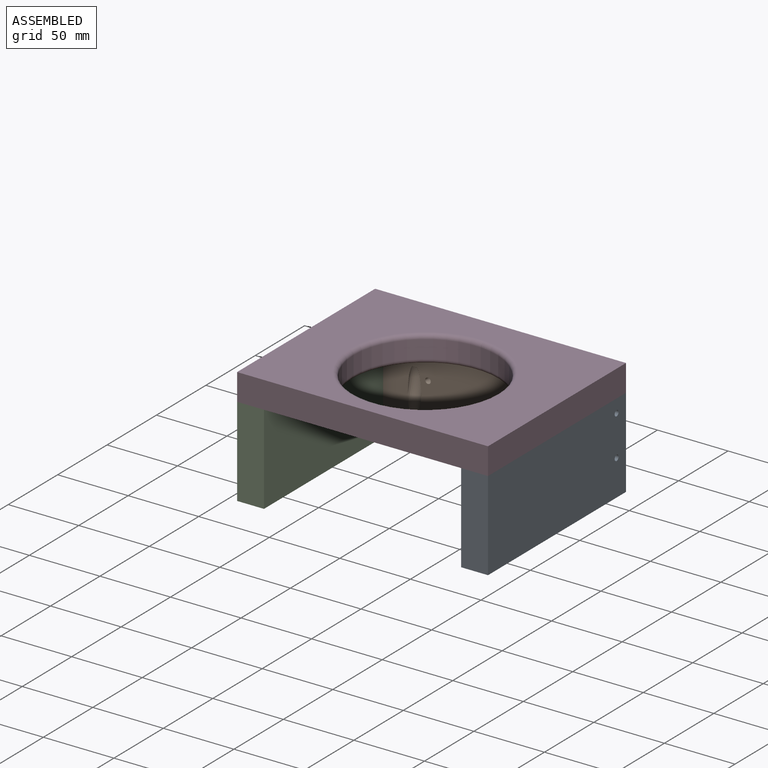
[diagram: assembled view]
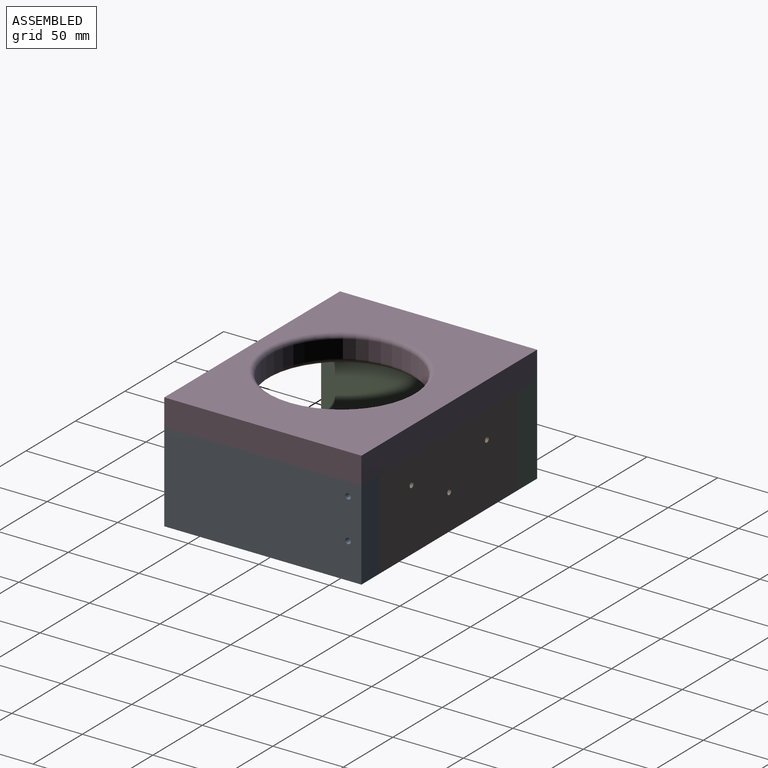
[diagram: assembled view, second angle]
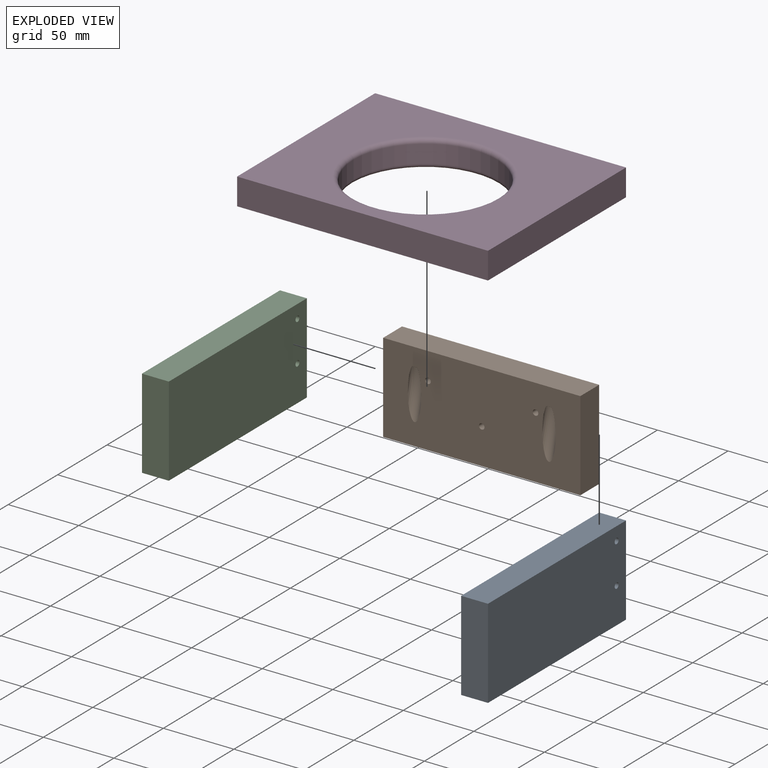
[diagram: exploded view]
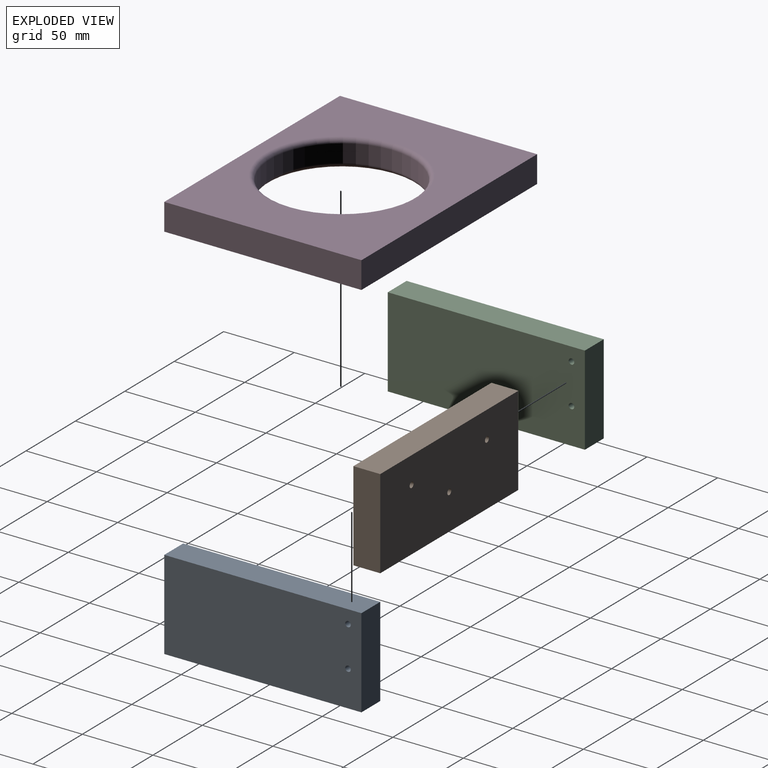
[diagram: exploded view, second angle]
ASSEMBLY  parts=4 mates=3
PART A: 8 faces, bbox 19.1x139.7x63.5 mm
  f0: plane 139.7x63.5mm, normal (1,0,0), area 8846.2mm2, adj f1,f3,f4,f5,f6,f7
  f1: plane 63.5x19.05mm, normal (0,-1,0), area 1209.7mm2, adj f0,f2,f4,f5
  f2: plane 139.7x63.5mm, normal (-1,0,0), area 8846.2mm2, adj f1,f3,f4,f5,f6,f7
  f3: plane 63.5x19.05mm, normal (0,1,0), area 1209.7mm2, adj f0,f2,f4,f5
  f4: plane 139.7x19.05mm, normal (0,0,-1), area 2661.3mm2, adj f0,f1,f2,f3
  f5: plane 139.7x19.05mm, normal (0,0,1), area 2661.3mm2, adj f0,f1,f2,f3
  f6: cylinder r=1.98mm len=19.05mm, axis (-1,0,0), area 237.5mm2, adj f0,f2
  f7: cylinder r=1.98mm len=19.05mm, axis (-1,0,0), area 237.5mm2, adj f0,f2
PART B: 17 faces, bbox 139.7x27.9x63.5 mm
  f0: plane 139.7x63.5mm, normal (0,-1,0), area 8290.7mm2, adj f1,f3,f4,f5,f6,f7,f8,f9
  f1: plane 139.7x19.05mm, normal (0,0,-1), area 2661.3mm2, adj f0,f2,f4,f5
  f2: plane 139.7x63.5mm, normal (0,1,0), area 8833.8mm2, adj f1,f3,f4,f5,f6,f7,f8
  f3: plane 139.7x19.05mm, normal (0,0,1), area 2661.3mm2, adj f0,f2,f4,f5
  f4: plane 63.5x19.05mm, normal (1,0,0), area 1209.7mm2, adj f0,f1,f2,f3
  f5: plane 63.5x19.05mm, normal (-1,0,0), area 1209.7mm2, adj f0,f1,f2,f3
  f6: cylinder r=1.98mm len=19.05mm, axis (0,-1,0), area 237.5mm2, adj f0,f2
  f7: cylinder r=1.98mm len=19.05mm, axis (0,-1,0), area 237.5mm2, adj f0,f2
  f8: cylinder r=1.98mm len=19.05mm, axis (0,-1,0), area 237.5mm2, adj f0,f2
  f9: cylinder r=4.76mm len=35.5mm, axis (0,0.26,0.97), area 492.7mm2, adj f0,f10
  f10: plane 9.53x8.83mm, normal (0,-0.26,-0.97), area 57.9mm2, adj f0,f9,f12
  f11: plane 3.97x3.83mm, normal (0,-0.26,-0.97), area 12.4mm2, adj f12
  f12: cylinder r=1.98mm len=13.29mm, axis (0,0.26,0.97), area 158.3mm2, adj f10,f11
  f13: cylinder r=4.76mm len=35.5mm, axis (0,0.26,0.97), area 492.7mm2, adj f0,f14
  f14: plane 9.53x8.83mm, normal (0,-0.26,-0.97), area 57.9mm2, adj f0,f13,f16
  f15: plane 3.97x3.83mm, normal (0,-0.26,-0.97), area 12.4mm2, adj f16
  f16: cylinder r=1.98mm len=13.29mm, axis (0,0.26,0.97), area 158.3mm2, adj f14,f15
PART C: same geometry as A
PART D: 9 faces, bbox 177.8x139.7x19.1 mm
  f0: plane 177.8x19.05mm, normal (0,1,0), area 3387.1mm2, adj f1,f4,f5,f6
  f1: plane 139.7x19.05mm, normal (-1,0,0), area 2661.3mm2, adj f0,f2,f5,f6
  f2: plane 177.8x19.05mm, normal (0,-1,0), area 3387.1mm2, adj f1,f4,f5,f6
  f3: cylinder r=50.8mm len=101.6mm, axis (0,0,-1), area 4053.7mm2, adj f7,f8
  f4: plane 139.7x19.05mm, normal (1,0,0), area 2661.3mm2, adj f0,f2,f5,f6
  f5: plane 177.8x139.7mm, normal (0,0,1), area 15686.3mm2, adj f0,f1,f2,f4,f8
  f6: plane 177.8x139.7mm, normal (0,0,-1), area 15686.3mm2, adj f0,f1,f2,f4,f7
  f7: torus R=53.98mm, axis (0,0,1), area 1628mm2, adj f3,f6
  f8: torus R=53.98mm, axis (0,0,1), area 1628mm2, adj f3,f5
PLACE A t=(158.69,-6.25,-9.33)mm
PLACE B t=(-0.06,-6.25,-9.33)mm
PLACE C t=(-0.06,-6.25,-9.33)mm
PLACE D t=(-0.06,-6.25,-9.33)mm fixed
MATE fastened B.f5 <-> C.f0  axis (-1,0,0) through (-69.91,69.95,-9.33)mm
MATE fastened C.f5 <-> D.f6  axis (0,0,1) through (-88.96,69.95,-9.33)mm
MATE fastened A.f5 <-> D.f6  axis (0,0,1) through (88.84,69.95,-9.33)mm
